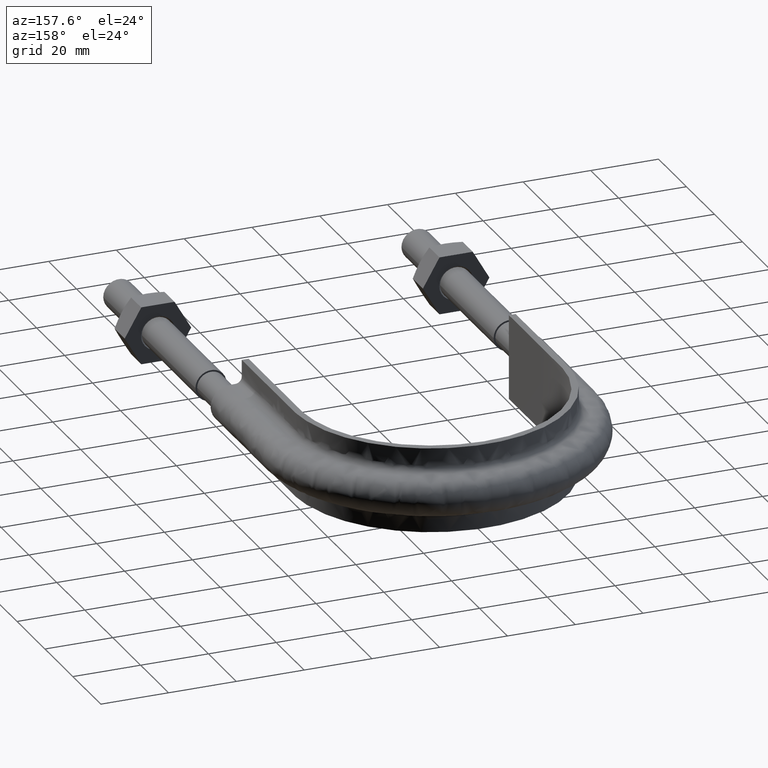
[diagram: clean part render]
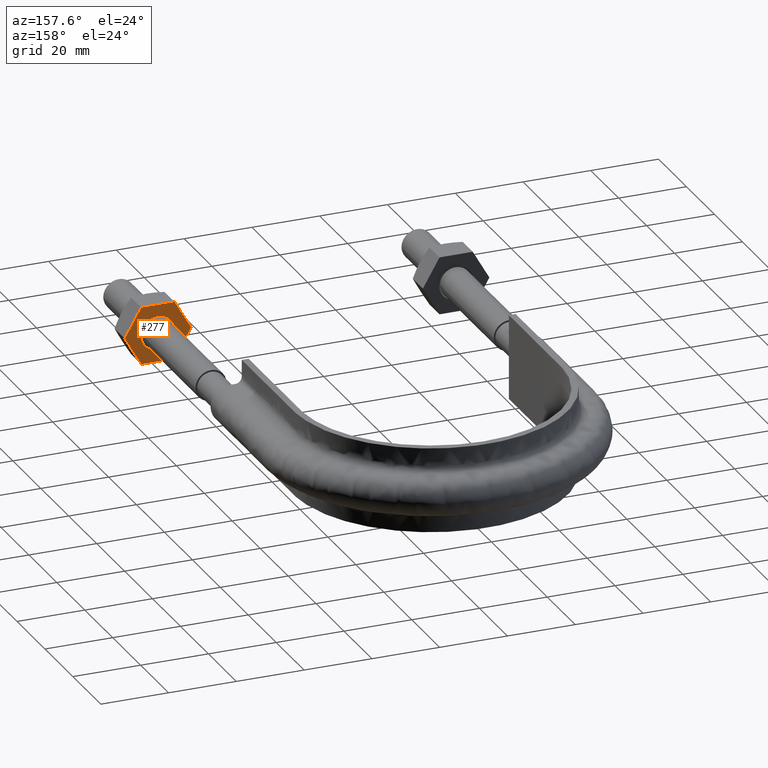
[diagram: same view with one face highlighted and labeled with its STEP entity id]
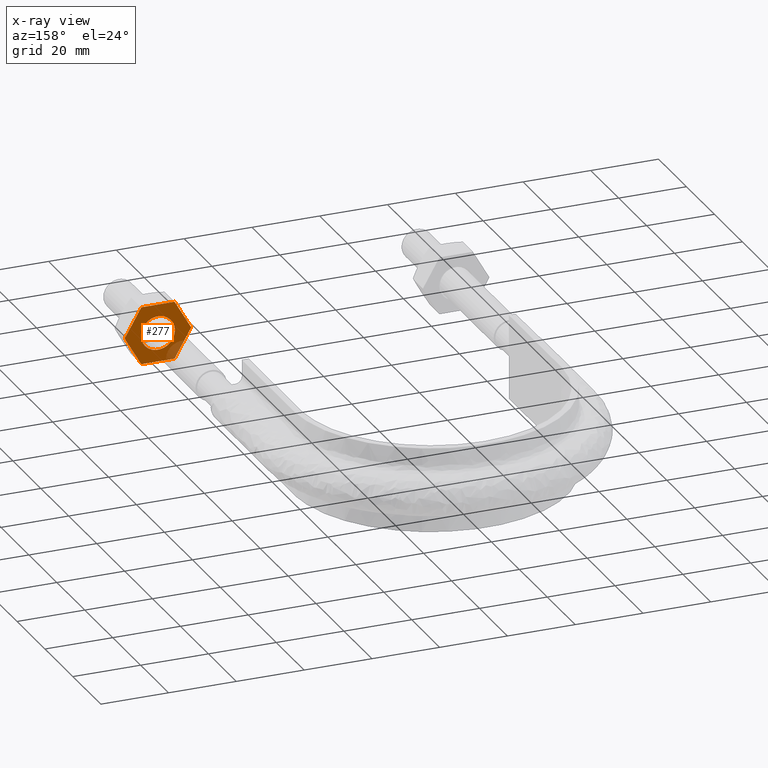
[diagram: x-ray of the same camera — body ghosted, the highlighted face saturated]
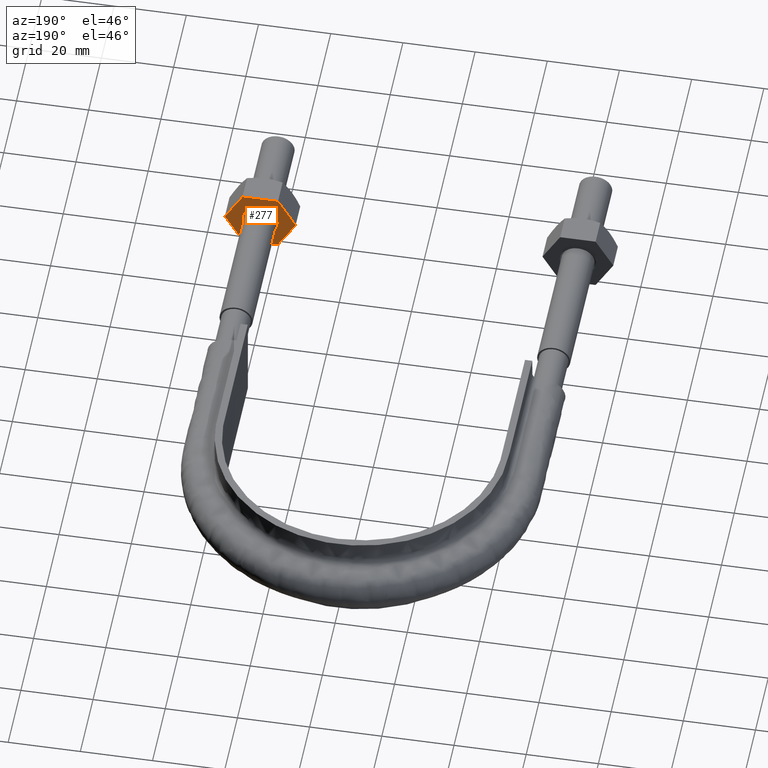
[diagram: same view with one face highlighted and labeled with its STEP entity id]
A machine part, auxiliary view. The second image highlights one B-rep face of the part: STEP entity #277.
The next image is the same camera in x-ray: the body ghosted, the highlighted face saturated — about 9% of this face is hidden behind the body in this view.
A second angle (auxiliary view) of the same face is appended — the face is thin or edge-on in the first view.
In plain terms, the highlighted planar face has unit normal (-0, -1, -0).
Its self-contained STEP definition (entity closure, byte-faithful):
#277 = ADVANCED_FACE( '', ( #424, #425 ), #426, .F. );
#424 = FACE_OUTER_BOUND( '', #1267, .T. );
#425 = FACE_BOUND( '', #1268, .T. );
#426 = PLANE( '', #1269 );
#1267 = EDGE_LOOP( '', ( #1707, #1708, #1709, #1710, #1711, #1712, #1713, #1714, #1715, #1716, #1717, #1718 ) );
#1268 = EDGE_LOOP( '', ( #1719 ) );
#1269 = AXIS2_PLACEMENT_3D( '', #1720, #1721, #1722 );
#1707 = ORIENTED_EDGE( '', *, *, #1957, .T. );
#1708 = ORIENTED_EDGE( '', *, *, #1958, .T. );
#1709 = ORIENTED_EDGE( '', *, *, #1959, .T. );
#1710 = ORIENTED_EDGE( '', *, *, #1960, .T. );
#1711 = ORIENTED_EDGE( '', *, *, #1961, .T. );
#1712 = ORIENTED_EDGE( '', *, *, #1951, .T. );
#1713 = ORIENTED_EDGE( '', *, *, #1947, .T. );
#1714 = ORIENTED_EDGE( '', *, *, #1962, .T. );
#1715 = ORIENTED_EDGE( '', *, *, #1943, .T. );
#1716 = ORIENTED_EDGE( '', *, *, #1963, .T. );
#1717 = ORIENTED_EDGE( '', *, *, #1964, .T. );
#1718 = ORIENTED_EDGE( '', *, *, #1965, .T. );
#1719 = ORIENTED_EDGE( '', *, *, #1955, .F. );
#1720 = CARTESIAN_POINT( '', ( 39.1000000000029, 27.9999999999963, 8.48704895708392 ) );
#1721 = DIRECTION( '', ( -2.44921270764476E-016, -1.00000000000000, -6.12303176911189E-017 ) );
#1722 = DIRECTION( '', ( -1.00000000000000, 2.44921270764476E-016, 3.01888774004914E-048 ) );
#1943 = EDGE_CURVE( '', #2162, #2160, #2163, .F. );
#1947 = EDGE_CURVE( '', #2170, #2168, #2171, .F. );
#1951 = EDGE_CURVE( '', #2177, #2170, #2178, .T. );
#1955 = EDGE_CURVE( '', #2183, #2183, #2184, .F. );
#1957 = EDGE_CURVE( '', #2187, #2188, #2189, .F. );
#1958 = EDGE_CURVE( '', #2188, #2190, #2191, .T. );
#1959 = EDGE_CURVE( '', #2190, #2192, #2193, .F. );
#1960 = EDGE_CURVE( '', #2192, #2194, #2195, .T. );
#1961 = EDGE_CURVE( '', #2194, #2177, #2196, .F. );
#1962 = EDGE_CURVE( '', #2168, #2162, #2197, .T. );
#1963 = EDGE_CURVE( '', #2160, #2198, #2199, .T. );
#1964 = EDGE_CURVE( '', #2198, #2200, #2201, .F. );
#1965 = EDGE_CURVE( '', #2200, #2187, #2202, .T. );
#2160 = VERTEX_POINT( '', #2735 );
#2162 = VERTEX_POINT( '', #2738 );
#2163 = CIRCLE( '', #2739, 9.80000000000000 );
#2168 = VERTEX_POINT( '', #2745 );
#2170 = VERTEX_POINT( '', #2748 );
#2171 = CIRCLE( '', #2749, 9.80000000000000 );
#2177 = VERTEX_POINT( '', #2766 );
#2178 = LINE( '', #2767, #2768 );
#2183 = VERTEX_POINT( '', #2779 );
#2184 = CIRCLE( '', #2780, 4.99999999999960 );
#2187 = VERTEX_POINT( '', #2783 );
#2188 = VERTEX_POINT( '', #2784 );
#2189 = CIRCLE( '', #2785, 9.80000000000000 );
#2190 = VERTEX_POINT( '', #2786 );
#2191 = LINE( '', #2787, #2788 );
#2192 = VERTEX_POINT( '', #2789 );
#2193 = CIRCLE( '', #2790, 9.80000000000000 );
#2194 = VERTEX_POINT( '', #2791 );
#2195 = LINE( '', #2792, #2793 );
#2196 = CIRCLE( '', #2794, 9.80000000000000 );
#2197 = LINE( '', #2795, #2796 );
#2198 = VERTEX_POINT( '', #2797 );
#2199 = LINE( '', #2798, #2799 );
#2200 = VERTEX_POINT( '', #2800 );
#2201 = CIRCLE( '', #2801, 9.80000000000000 );
#2202 = LINE( '', #2802, #2803 );
#2735 = CARTESIAN_POINT( '', ( 34.2000343881808, 27.9999999999963, 0.0259616478981602 ) );
#2738 = CARTESIAN_POINT( '', ( 34.2000343881808, 27.9999999999963, -0.0259616479006157 ) );
#2739 = AXIS2_PLACEMENT_3D( '', #3038, #3039, #3040 );
#2745 = CARTESIAN_POINT( '', ( 39.0775337474831, 27.9999999999963, -8.47403835209825 ) );
#2748 = CARTESIAN_POINT( '', ( 39.1225006406909, 27.9999999999963, -8.49999999999641 ) );
#2749 = AXIS2_PLACEMENT_3D( '', #3046, #3047, #3048 );
#2766 = CARTESIAN_POINT( '', ( 48.8774993593091, 27.9999999999963, -8.49999999999641 ) );
#2767 = CARTESIAN_POINT( '', ( 39.1000000000029, 27.9999999999963, -8.49999999999641 ) );
#2768 = VECTOR( '', #3050, 1000.00000000000 );
#2779 = CARTESIAN_POINT( '', ( 48.9999999999996, 27.9999999999963, 2.44921270764360E-016 ) );
#2780 = AXIS2_PLACEMENT_3D( '', #3055, #3056, #3057 );
#2783 = CARTESIAN_POINT( '', ( 48.8774993593139, 27.9999999999963, 8.49999999999369 ) );
#2784 = CARTESIAN_POINT( '', ( 48.9224662525169, 27.9999999999963, 8.47403835209825 ) );
#2785 = AXIS2_PLACEMENT_3D( '', #3061, #3062, #3063 );
#2786 = CARTESIAN_POINT( '', ( 53.7999656118192, 27.9999999999963, 0.0259616479006278 ) );
#2787 = CARTESIAN_POINT( '', ( 46.4612159321710, 27.9999999999963, 12.7370489570834 ) );
#2788 = VECTOR( '', #3064, 1000.00000000000 );
#2789 = CARTESIAN_POINT( '', ( 53.7999656118192, 27.9999999999963, -0.0259616478981788 ) );
#2790 = AXIS2_PLACEMENT_3D( '', #3065, #3066, #3067 );
#2791 = CARTESIAN_POINT( '', ( 48.9224662525157, 27.9999999999963, -8.47403835209898 ) );
#2792 = CARTESIAN_POINT( '', ( 53.8112159321666, 27.9999999999963, -0.00647552145502037 ) );
#2793 = VECTOR( '', #3068, 1000.00000000000 );
#2794 = AXIS2_PLACEMENT_3D( '', #3069, #3070, #3071 );
#2795 = CARTESIAN_POINT( '', ( 31.7387840678349, 27.9999999999963, 4.23704895708450 ) );
#2796 = VECTOR( '', #3072, 1000.00000000000 );
#2797 = CARTESIAN_POINT( '', ( 39.0775337474844, 27.9999999999963, 8.47403835209899 ) );
#2798 = CARTESIAN_POINT( '', ( 39.0887840678318, 27.9999999999963, 8.49352447854213 ) );
#2799 = VECTOR( '', #3073, 1000.00000000000 );
#2800 = CARTESIAN_POINT( '', ( 39.1225006406908, 27.9999999999963, 8.49999999999640 ) );
#2801 = AXIS2_PLACEMENT_3D( '', #3074, #3075, #3076 );
#2802 = CARTESIAN_POINT( '', ( 39.1000000000029, 27.9999999999963, 8.49999999999641 ) );
#2803 = VECTOR( '', #3077, 1000.00000000000 );
#3038 = CARTESIAN_POINT( '', ( 44.0000000000000, 27.9999999999963, 2.44921270764361E-016 ) );
#3039 = DIRECTION( '', ( -2.44921270764476E-016, -1.00000000000000, -6.12303176911189E-017 ) );
#3040 = DIRECTION( '', ( 1.00000000000000, -2.44921270764476E-016, 0.000000000000000 ) );
#3046 = CARTESIAN_POINT( '', ( 44.0000000000000, 27.9999999999963, 2.44921270764361E-016 ) );
#3047 = DIRECTION( '', ( -2.44921270764476E-016, -1.00000000000000, -6.12303176911189E-017 ) );
#3048 = DIRECTION( '', ( 1.00000000000000, -2.44921270764476E-016, 0.000000000000000 ) );
#3050 = DIRECTION( '', ( -1.00000000000000, 2.44921270764476E-016, -1.70002242903592E-029 ) );
#3055 = CARTESIAN_POINT( '', ( 44.0000000000000, 27.9999999999963, 2.44921270764360E-016 ) );
#3056 = DIRECTION( '', ( -2.44921270764476E-016, -1.00000000000000, -6.12303176911189E-017 ) );
#3057 = DIRECTION( '', ( 1.00000000000000, -2.44921270764476E-016, 0.000000000000000 ) );
#3061 = CARTESIAN_POINT( '', ( 44.0000000000000, 27.9999999999963, 2.44921270764361E-016 ) );
#3062 = DIRECTION( '', ( -2.44921270764476E-016, -1.00000000000000, -6.12303176911189E-017 ) );
#3063 = DIRECTION( '', ( 1.00000000000000, -2.44921270764476E-016, 0.000000000000000 ) );
#3064 = DIRECTION( '', ( 0.499999999999934, -6.94336247799188E-017, -0.866025403784477 ) );
#3065 = CARTESIAN_POINT( '', ( 44.0000000000000, 27.9999999999963, 2.44921270764361E-016 ) );
#3066 = DIRECTION( '', ( -2.44921270764476E-016, -1.00000000000000, -6.12303176911189E-017 ) );
#3067 = DIRECTION( '', ( 1.00000000000000, -2.44921270764476E-016, 0.000000000000000 ) );
#3068 = DIRECTION( '', ( -0.499999999999891, 1.75487645984516E-016, -0.866025403784502 ) );
#3069 = CARTESIAN_POINT( '', ( 44.0000000000000, 27.9999999999963, 2.44921270764361E-016 ) );
#3070 = DIRECTION( '', ( -2.44921270764476E-016, -1.00000000000000, -6.12303176911189E-017 ) );
#3071 = DIRECTION( '', ( 1.00000000000000, -2.44921270764476E-016, 0.000000000000000 ) );
#3072 = DIRECTION( '', ( -0.499999999999934, 6.94336247799188E-017, 0.866025403784477 ) );
#3073 = DIRECTION( '', ( 0.499999999999891, -1.75487645984516E-016, 0.866025403784502 ) );
#3074 = CARTESIAN_POINT( '', ( 44.0000000000000, 27.9999999999963, 2.44921270764361E-016 ) );
#3075 = DIRECTION( '', ( -2.44921270764476E-016, -1.00000000000000, -6.12303176911189E-017 ) );
#3076 = DIRECTION( '', ( 1.00000000000000, -2.44921270764476E-016, 0.000000000000000 ) );
#3077 = DIRECTION( '', ( 1.00000000000000, -2.44921270764459E-016, -2.77888823063656E-013 ) );